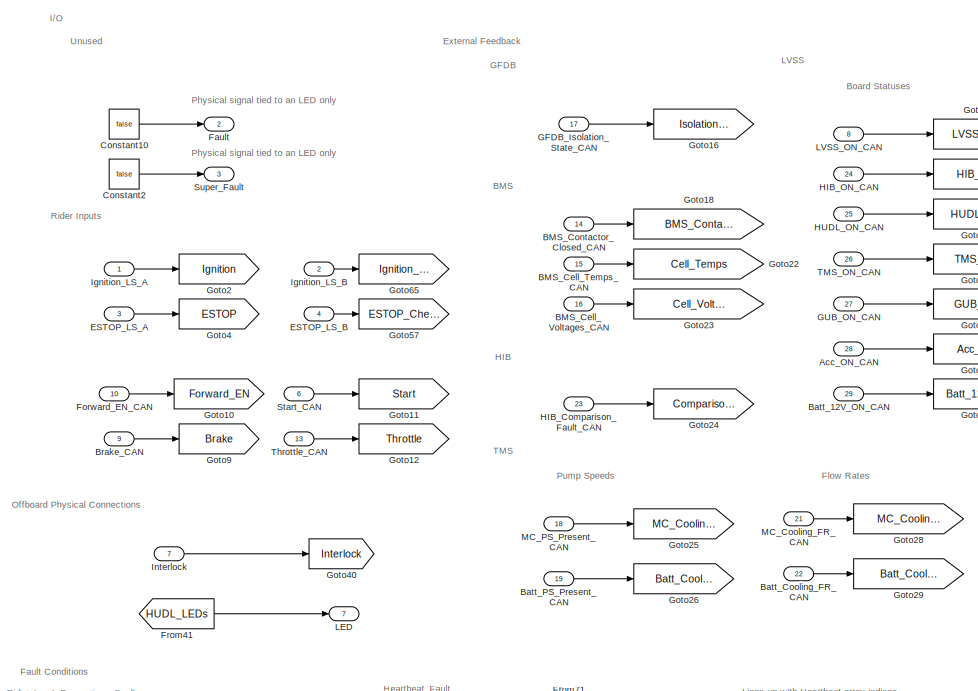
[diagram: root canvas - part 1/9, top left region]
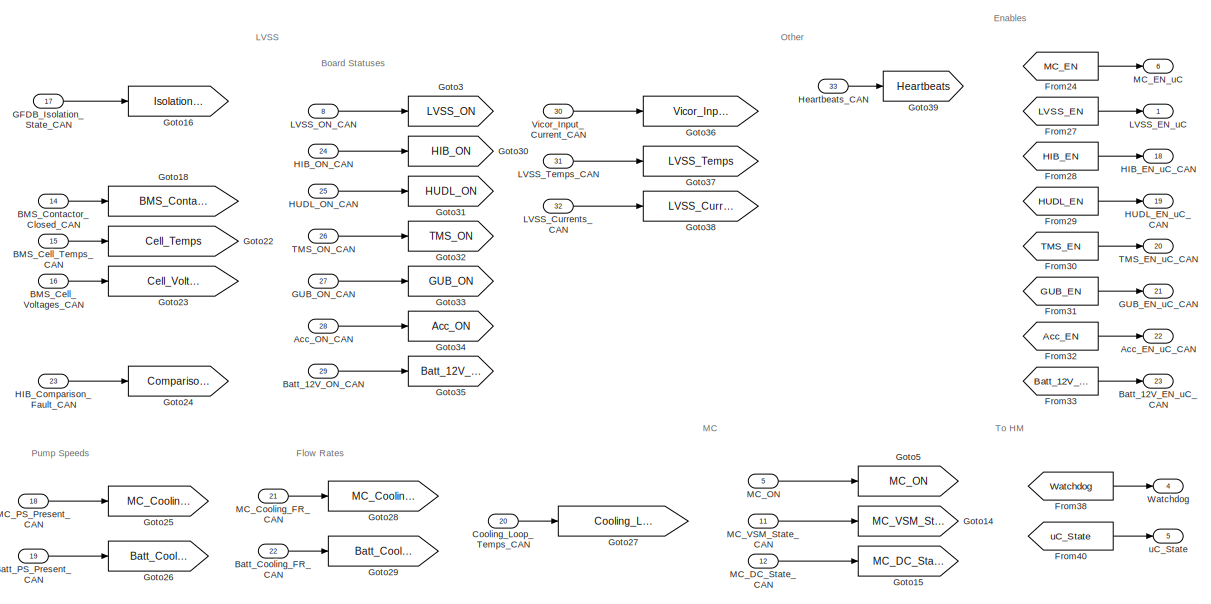
[diagram: root canvas - part 2/9, top left region]
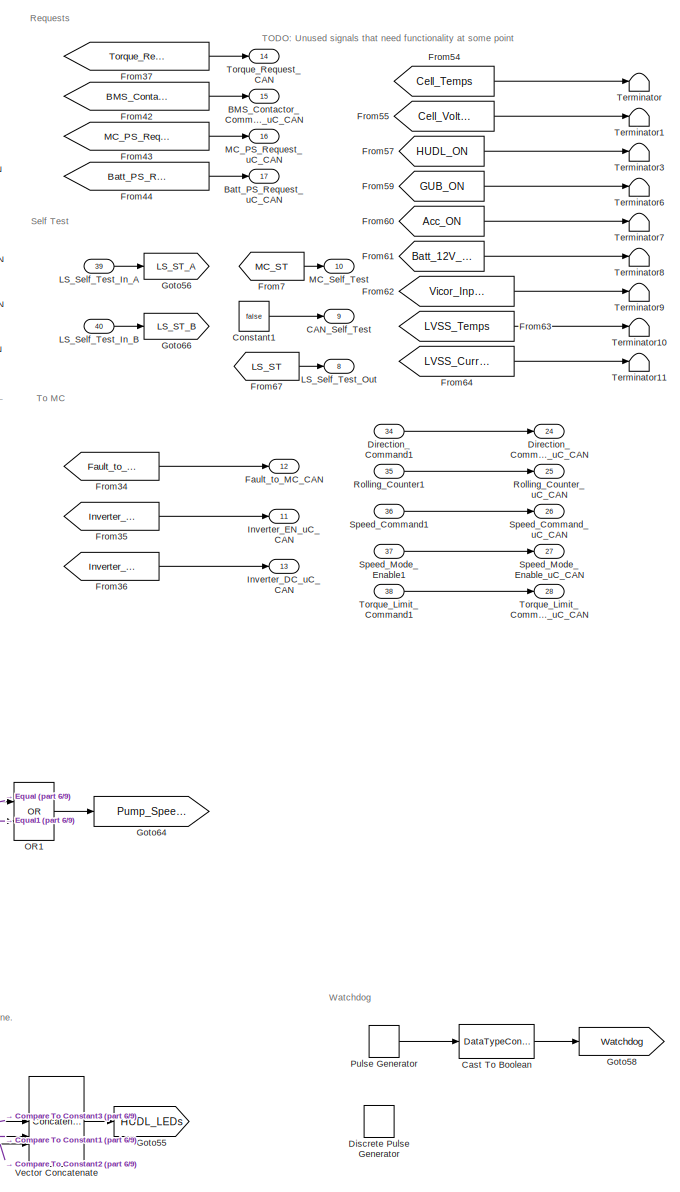
[diagram: root canvas - part 3/9, central region]
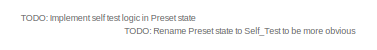
[diagram: root canvas - part 4/9, top right region]
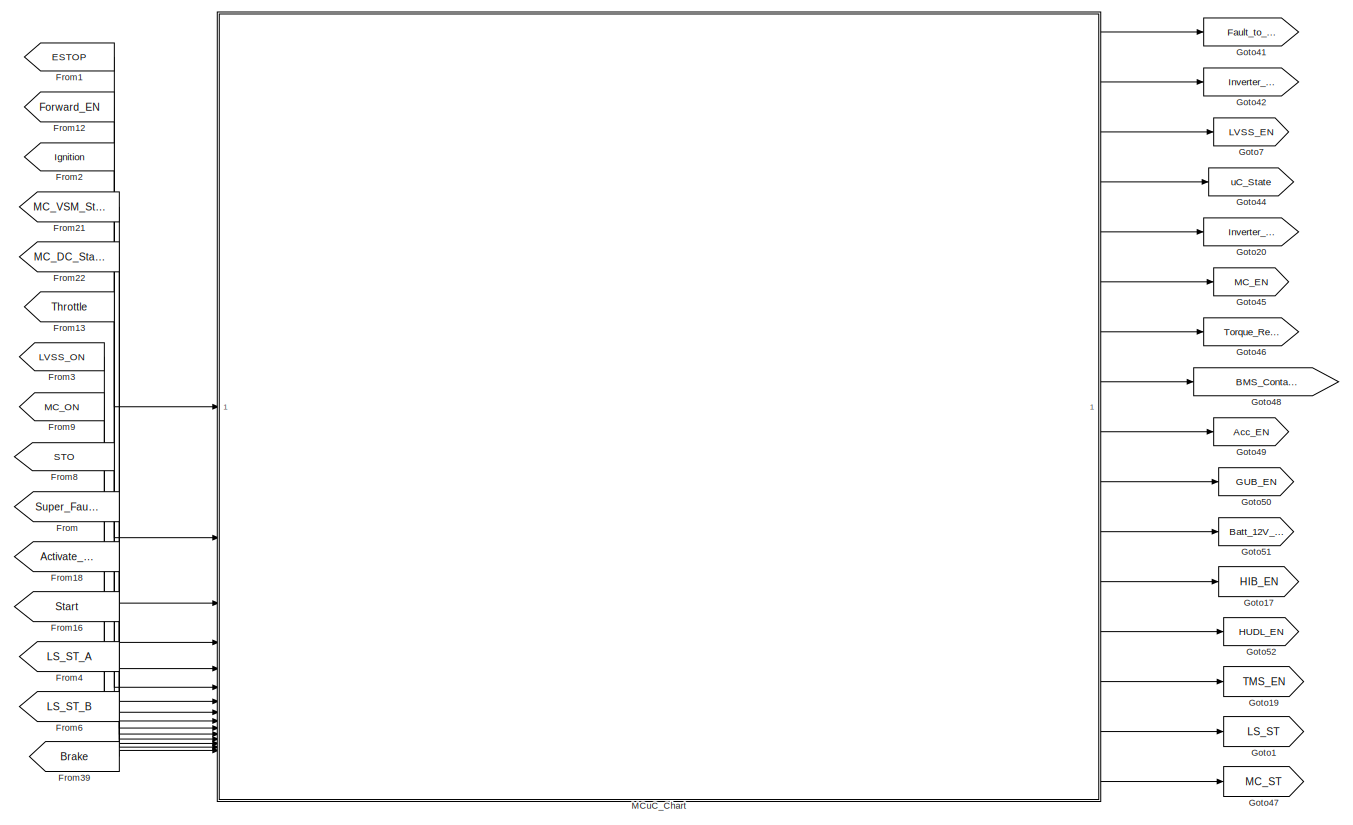
[diagram: root canvas - part 5/9, middle right region]
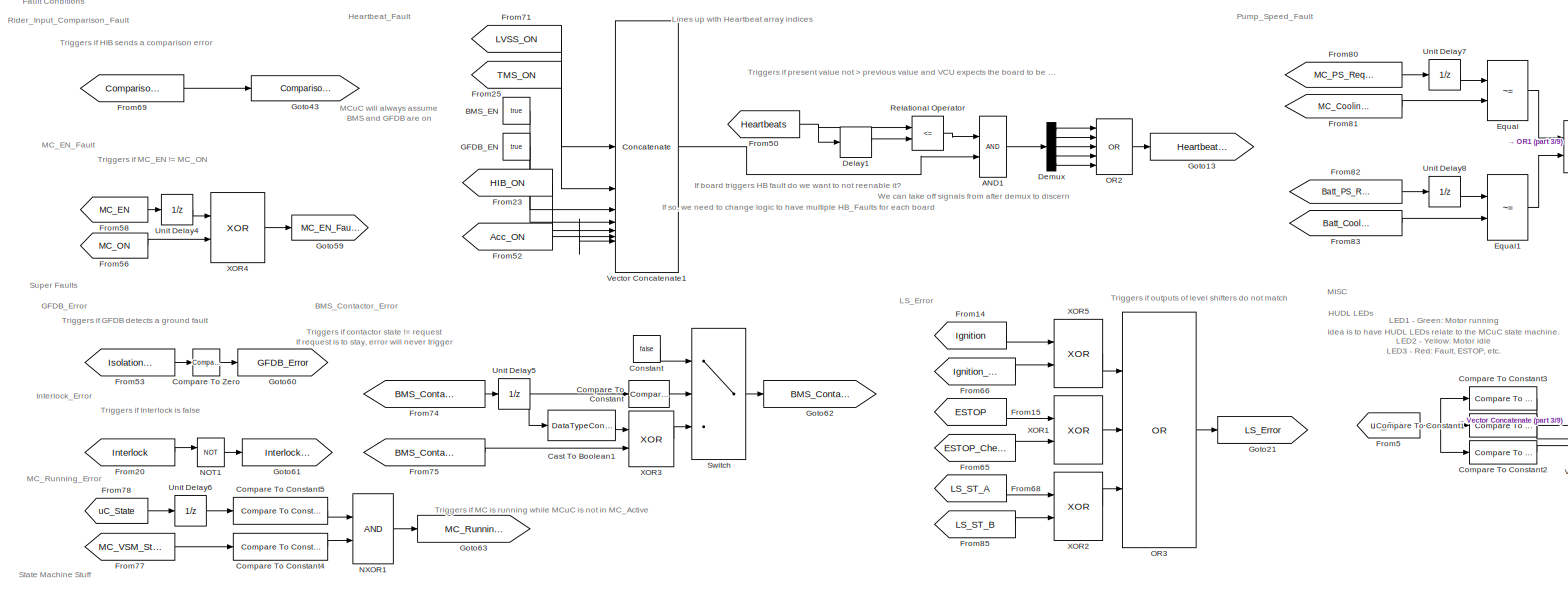
[diagram: root canvas - part 6/9, middle left region]
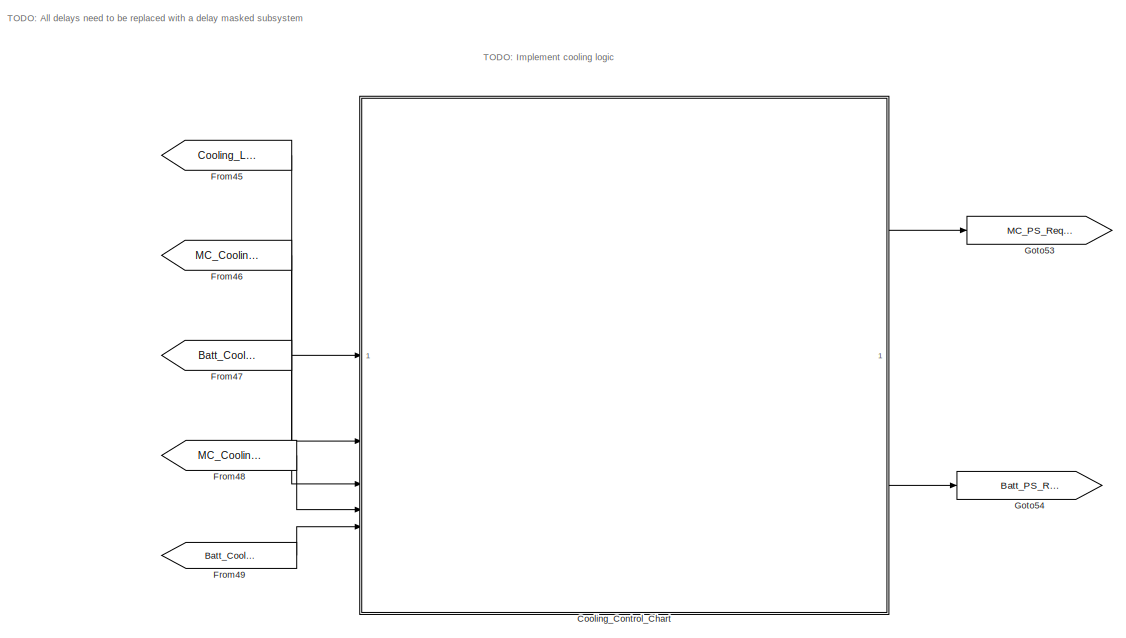
[diagram: root canvas - part 7/9, bottom right region]
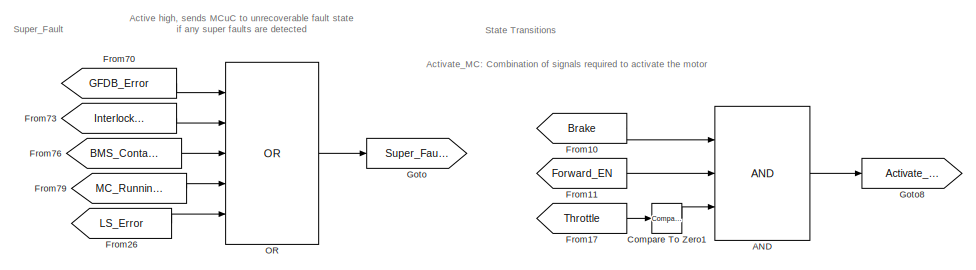
[diagram: root canvas - part 8/9, bottom left region]
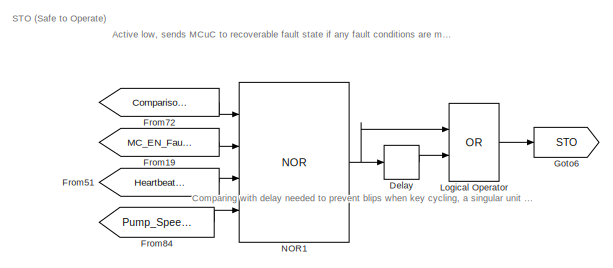
[diagram: root canvas - part 9/9, bottom left region]
MODEL slx_b971593e279c
KIND model
CONFIG AbsTol = auto
CONFIG EnableMultiTasking = off
CONFIG FixedStep = .0001
CONFIG MaxStep = auto
CONFIG MinStep = auto
CONFIG RelTol = 1e-3
CONFIG SampleTimeConstraint = Unconstrained
CONFIG SolverName = ode8
CONFIG StartTime = 0.0
CONFIG StopTime = 20.0
BLOCK [Logic] AND
  AllPortsSameDT = off
  IconShape = distinctive
  Inputs = 3
  OutDataTypeStr = boolean
BLOCK [Logic] AND1
  AllPortsSameDT = off
  IconShape = distinctive
  OutDataTypeStr = boolean
BLOCK [Outport] Acc_EN_uC_CAN
  OutDataTypeStr = boolean
  Port = 22
BLOCK [Inport] Acc_ON_CAN
  OutDataTypeStr = boolean
  Port = 28
BLOCK [Inport] BMS_Cell_Temps_CAN
  OutDataTypeStr = int32
  Port = 15
  PortDimensions = [1,45]
BLOCK [Inport] BMS_Cell_Voltages_CAN
  OutDataTypeStr = int16
  Port = 16
  PortDimensions = [1,100]
BLOCK [Inport] BMS_Contactor_Closed_CAN
  OutDataTypeStr = boolean
  Port = 14
BLOCK [Outport] BMS_Contactor_Command_uC_CAN
  OutDataTypeStr = Enum: BMS_Contactor_Command
  Port = 15
BLOCK [Constant] BMS_EN
  NameLocation = right
  Value = true
BLOCK [Outport] Batt_12V_EN_uC_CAN
  OutDataTypeStr = boolean
  Port = 23
BLOCK [Inport] Batt_12V_ON_CAN
  OutDataTypeStr = boolean
  Port = 29
BLOCK [Inport] Batt_Cooling_FR_CAN
  OutDataTypeStr = int16
  Port = 22
BLOCK [Inport] Batt_PS_Present_CAN
  OutDataTypeStr = uint8
  Port = 19
BLOCK [Outport] Batt_PS_Request_uC_CAN
  Port = 17
BLOCK [Inport] Brake_CAN
  OutDataTypeStr = boolean
  Port = 9
BLOCK [Outport] CAN_Self_Test
  OutDataTypeStr = boolean
  Port = 9
BLOCK [DataTypeConversion] Cast To Boolean
  OutDataTypeStr = boolean
  RndMeth = Floor
  SaturateOnIntegerOverflow = off
BLOCK [DataTypeConversion] Cast To Boolean1
  OutDataTypeStr = boolean
  RndMeth = Floor
  SaturateOnIntegerOverflow = off
BLOCK [Reference] Compare To Constant  REF=simulink/Logic and Bit
Operations/Compare
To Constant
  SourceBlock = simulink/Logic and Bit\nOperations/Compare\nTo Constant
  SourceType = Compare To Constant
BLOCK [Reference] Compare To Constant1  REF=simulink/Logic and Bit
Operations/Compare
To Constant
  SourceBlock = simulink/Logic and Bit\nOperations/Compare\nTo Constant
  SourceType = Compare To Constant
BLOCK [Reference] Compare To Constant2  REF=simulink/Logic and Bit
Operations/Compare
To Constant
  SourceBlock = simulink/Logic and Bit\nOperations/Compare\nTo Constant
  SourceType = Compare To Constant
BLOCK [Reference] Compare To Constant3  REF=simulink/Logic and Bit
Operations/Compare
To Constant
  SourceBlock = simulink/Logic and Bit\nOperations/Compare\nTo Constant
  SourceType = Compare To Constant
BLOCK [Reference] Compare To Constant4  REF=simulink/Logic and Bit
Operations/Compare
To Constant
  SourceBlock = simulink/Logic and Bit\nOperations/Compare\nTo Constant
  SourceType = Compare To Constant
BLOCK [Reference] Compare To Constant5  REF=simulink/Logic and Bit
Operations/Compare
To Constant
  SourceBlock = simulink/Logic and Bit\nOperations/Compare\nTo Constant
  SourceType = Compare To Constant
BLOCK [Reference] Compare To Zero  REF=simulink/Logic and Bit
Operations/Compare
To Zero
  SourceBlock = simulink/Logic and Bit\nOperations/Compare\nTo Zero
  SourceType = Compare To Zero
BLOCK [Reference] Compare To Zero1  REF=simulink/Logic and Bit
Operations/Compare
To Zero
  SourceBlock = simulink/Logic and Bit\nOperations/Compare\nTo Zero
  SourceType = Compare To Zero
BLOCK [Constant] Constant
  Value = false
BLOCK [Constant] Constant1
  Value = false
BLOCK [Constant] Constant10
  Value = false
BLOCK [Constant] Constant2
  Value = false
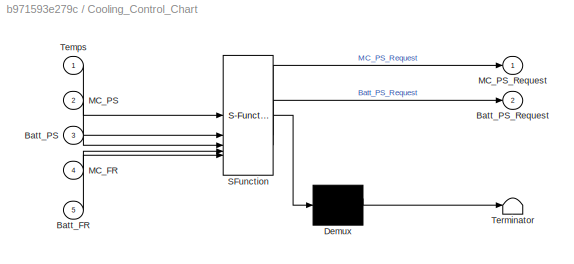
BLOCK [SubSystem] Cooling_Control_Chart
  ErrorFcn = Stateflow.Translate.translate
  PermitHierarchicalResolution = ExplicitOnly
  SFBlockType = Chart
  TreatAsAtomicUnit = on
BLOCK [Demux] Cooling_Control_Chart/ Demux 
  Outputs = 1
BLOCK [S-Function] Cooling_Control_Chart/ SFunction 
  EnableBusSupport = off
  FunctionName = sf_sfun
  PortCounts = [5 3]
  SFcnIsStateOwnerBlock = off
  SFunctionDeploymentMode = off
  Tag = Stateflow S-Function 3
BLOCK [Terminator] Cooling_Control_Chart/ Terminator 
BLOCK [Inport] Cooling_Control_Chart/Batt_FR
  Port = 5
BLOCK [Inport] Cooling_Control_Chart/Batt_PS
  Port = 3
BLOCK [Outport] Cooling_Control_Chart/Batt_PS_Request
  Port = 2
BLOCK [Inport] Cooling_Control_Chart/MC_FR
  Port = 4
BLOCK [Inport] Cooling_Control_Chart/MC_PS
  Port = 2
BLOCK [Outport] Cooling_Control_Chart/MC_PS_Request
BLOCK [Inport] Cooling_Control_Chart/Temps
BLOCK [Inport] Cooling_Loop_Temps_CAN
  OutDataTypeStr = int32
  Port = 20
  PortDimensions = [1,5]
BLOCK [Delay] Delay
  DelayLength = 20
  InitialCondition = 1
  InputPortMap = u0
BLOCK [Delay] Delay1
  DelayLength = 10
  InitialCondition = 1
  InputPortMap = u0
BLOCK [Demux] Demux
  Outputs = 5
BLOCK [Inport] Direction_Command1
  OutDataTypeStr = int16
  Port = 34
BLOCK [Outport] Direction_Command_uC_CAN
  OutDataTypeStr = int16
  Port = 24
BLOCK [DiscretePulseGenerator] Discrete Pulse Generator
  Amplitude = true
  Period = 10
  PulseWidth = 5
BLOCK [Inport] ESTOP_LS_A
  OutDataTypeStr = boolean
  Port = 3
BLOCK [Inport] ESTOP_LS_B
  OutDataTypeStr = boolean
  Port = 4
BLOCK [RelationalOperator] Equal
  InputSameDT = off
  Operator = ~=
  OutDataTypeStr = boolean
  RndMeth = Simplest
BLOCK [RelationalOperator] Equal1
  InputSameDT = off
  Operator = ~=
  OutDataTypeStr = boolean
  RndMeth = Simplest
BLOCK [Outport] Fault
  OutDataTypeStr = boolean
  Port = 2
BLOCK [Outport] Fault_to_MC_CAN
  OutDataTypeStr = boolean
  Port = 12
BLOCK [Inport] Forward_EN_CAN
  OutDataTypeStr = boolean
  Port = 10
BLOCK [From] From
  GotoTag = Super_Fault
BLOCK [From] From1
  GotoTag = ESTOP
BLOCK [From] From10
  GotoTag = Brake
BLOCK [From] From11
  GotoTag = Forward_EN
BLOCK [From] From12
  GotoTag = Forward_EN
BLOCK [From] From13
  GotoTag = Throttle
BLOCK [From] From14
  GotoTag = Ignition
BLOCK [From] From15
  GotoTag = ESTOP
BLOCK [From] From16
  GotoTag = Start
BLOCK [From] From17
  GotoTag = Throttle
BLOCK [From] From18
  GotoTag = Activate_MC
BLOCK [From] From19
  GotoTag = MC_EN_Fault
BLOCK [From] From2
  GotoTag = Ignition
BLOCK [From] From20
  GotoTag = Interlock
BLOCK [From] From21
  GotoTag = MC_VSM_State
BLOCK [From] From22
  GotoTag = MC_DC_State
BLOCK [From] From23
  GotoTag = HIB_ON
BLOCK [From] From24
  GotoTag = MC_EN
BLOCK [From] From25
  GotoTag = TMS_ON
BLOCK [From] From26
  GotoTag = LS_Error
BLOCK [From] From27
  GotoTag = LVSS_EN
BLOCK [From] From28
  GotoTag = HIB_EN
BLOCK [From] From29
  GotoTag = HUDL_EN
BLOCK [From] From3
  GotoTag = LVSS_ON
BLOCK [From] From30
  GotoTag = TMS_EN
BLOCK [From] From31
  GotoTag = GUB_EN
BLOCK [From] From32
  GotoTag = Acc_EN
BLOCK [From] From33
  GotoTag = Batt_12V_EN
BLOCK [From] From34
  GotoTag = Fault_to_MC
BLOCK [From] From35
  GotoTag = Inverter_EN
BLOCK [From] From36
  GotoTag = Inverter_DC
BLOCK [From] From37
  GotoTag = Torque_Request
BLOCK [From] From38
  GotoTag = Watchdog
BLOCK [From] From39
  GotoTag = Brake
BLOCK [From] From4
  GotoTag = LS_ST_A
BLOCK [From] From40
  GotoTag = uC_State
BLOCK [From] From41
  GotoTag = HUDL_LEDs
BLOCK [From] From42
  GotoTag = BMS_Contactor_Request
BLOCK [From] From43
  GotoTag = MC_PS_Request
BLOCK [From] From44
  GotoTag = Batt_PS_Request
BLOCK [From] From45
  GotoTag = Cooling_Loop_Temps
BLOCK [From] From46
  GotoTag = MC_Cooling_PS
BLOCK [From] From47
  GotoTag = Batt_Cooling_PS
BLOCK [From] From48
  GotoTag = MC_Cooling_FR
BLOCK [From] From49
  GotoTag = Batt_Cooling_FR
BLOCK [From] From5
  GotoTag = uC_State
BLOCK [From] From50
  GotoTag = Heartbeats
BLOCK [From] From51
  GotoTag = Heartbeat_Fault
BLOCK [From] From52
  GotoTag = Acc_ON
BLOCK [From] From53
  GotoTag = Isolation_State
BLOCK [From] From54
  GotoTag = Cell_Temps
BLOCK [From] From55
  GotoTag = Cell_Voltages
BLOCK [From] From56
  GotoTag = MC_ON
BLOCK [From] From57
  GotoTag = HUDL_ON
BLOCK [From] From58
  GotoTag = MC_EN
BLOCK [From] From59
  GotoTag = GUB_ON
BLOCK [From] From6
  GotoTag = LS_ST_B
BLOCK [From] From60
  GotoTag = Acc_ON
BLOCK [From] From61
  GotoTag = Batt_12V_ON
BLOCK [From] From62
  GotoTag = Vicor_Input_Current
BLOCK [From] From63
  GotoTag = LVSS_Temps
BLOCK [From] From64
  GotoTag = LVSS_Currents
BLOCK [From] From65
  GotoTag = ESTOP_Check
BLOCK [From] From66
  GotoTag = Ignition_Check
BLOCK [From] From67
  GotoTag = LS_ST
BLOCK [From] From68
  GotoTag = LS_ST_A
BLOCK [From] From69
  GotoTag = Comparison_Error
BLOCK [From] From7
  GotoTag = MC_ST
BLOCK [From] From70
  GotoTag = GFDB_Error
BLOCK [From] From71
  GotoTag = LVSS_ON
BLOCK [From] From72
  GotoTag = Comparison_Fault
BLOCK [From] From73
  GotoTag = Interlock_Error
BLOCK [From] From74
  GotoTag = BMS_Contactor_Request
BLOCK [From] From75
  GotoTag = BMS_Contactor_Closed
BLOCK [From] From76
  GotoTag = BMS_Contactor_Error
BLOCK [From] From77
  GotoTag = MC_VSM_State
BLOCK [From] From78
  GotoTag = uC_State
BLOCK [From] From79
  GotoTag = MC_Running_Error
BLOCK [From] From8
  GotoTag = STO
BLOCK [From] From80
  GotoTag = MC_PS_Request
BLOCK [From] From81
  GotoTag = MC_Cooling_PS
BLOCK [From] From82
  GotoTag = Batt_PS_Request
BLOCK [From] From83
  GotoTag = Batt_Cooling_PS
BLOCK [From] From84
  GotoTag = Pump_Speed_Fault
BLOCK [From] From85
  GotoTag = LS_ST_B
BLOCK [From] From9
  GotoTag = MC_ON
BLOCK [Constant] GFDB_EN
  NameLocation = right
  Value = true
BLOCK [Inport] GFDB_Isolation_State_CAN
  OutDataTypeStr = uint8
  Port = 17
BLOCK [Outport] GUB_EN_uC_CAN
  OutDataTypeStr = boolean
  Port = 21
BLOCK [Inport] GUB_ON_CAN
  OutDataTypeStr = boolean
  Port = 27
BLOCK [Goto] Goto
  GotoTag = Super_Fault
BLOCK [Goto] Goto1
  GotoTag = LS_ST
BLOCK [Goto] Goto10
  GotoTag = Forward_EN
BLOCK [Goto] Goto11
  GotoTag = Start
BLOCK [Goto] Goto12
  GotoTag = Throttle
BLOCK [Goto] Goto13
  GotoTag = Heartbeat_Fault
BLOCK [Goto] Goto14
  GotoTag = MC_VSM_State
BLOCK [Goto] Goto15
  GotoTag = MC_DC_State
BLOCK [Goto] Goto16
  GotoTag = Isolation_State
BLOCK [Goto] Goto17
  GotoTag = HIB_EN
BLOCK [Goto] Goto18
  GotoTag = BMS_Contactor_Closed
BLOCK [Goto] Goto19
  GotoTag = TMS_EN
BLOCK [Goto] Goto2
  GotoTag = Ignition
BLOCK [Goto] Goto20
  GotoTag = Inverter_DC
BLOCK [Goto] Goto21
  GotoTag = LS_Error
BLOCK [Goto] Goto22
  GotoTag = Cell_Temps
BLOCK [Goto] Goto23
  GotoTag = Cell_Voltages
BLOCK [Goto] Goto24
  GotoTag = Comparison_Error
BLOCK [Goto] Goto25
  GotoTag = MC_Cooling_PS
BLOCK [Goto] Goto26
  GotoTag = Batt_Cooling_PS
BLOCK [Goto] Goto27
  GotoTag = Cooling_Loop_Temps
BLOCK [Goto] Goto28
  GotoTag = MC_Cooling_FR
BLOCK [Goto] Goto29
  GotoTag = Batt_Cooling_FR
BLOCK [Goto] Goto3
  GotoTag = LVSS_ON
BLOCK [Goto] Goto30
  GotoTag = HIB_ON
BLOCK [Goto] Goto31
  GotoTag = HUDL_ON
BLOCK [Goto] Goto32
  GotoTag = TMS_ON
BLOCK [Goto] Goto33
  GotoTag = GUB_ON
BLOCK [Goto] Goto34
  GotoTag = Acc_ON
BLOCK [Goto] Goto35
  GotoTag = Batt_12V_ON
BLOCK [Goto] Goto36
  GotoTag = Vicor_Input_Current
BLOCK [Goto] Goto37
  GotoTag = LVSS_Temps
BLOCK [Goto] Goto38
  GotoTag = LVSS_Currents
BLOCK [Goto] Goto39
  GotoTag = Heartbeats
BLOCK [Goto] Goto4
  GotoTag = ESTOP
BLOCK [Goto] Goto40
  GotoTag = Interlock
BLOCK [Goto] Goto41
  GotoTag = Fault_to_MC
BLOCK [Goto] Goto42
  GotoTag = Inverter_EN
BLOCK [Goto] Goto43
  GotoTag = Comparison_Fault
BLOCK [Goto] Goto44
  GotoTag = uC_State
BLOCK [Goto] Goto45
  GotoTag = MC_EN
BLOCK [Goto] Goto46
  GotoTag = Torque_Request
BLOCK [Goto] Goto47
  GotoTag = MC_ST
BLOCK [Goto] Goto48
  GotoTag = BMS_Contactor_Request
BLOCK [Goto] Goto49
  GotoTag = Acc_EN
BLOCK [Goto] Goto5
  GotoTag = MC_ON
BLOCK [Goto] Goto50
  GotoTag = GUB_EN
BLOCK [Goto] Goto51
  GotoTag = Batt_12V_EN
BLOCK [Goto] Goto52
  GotoTag = HUDL_EN
BLOCK [Goto] Goto53
  GotoTag = MC_PS_Request
BLOCK [Goto] Goto54
  GotoTag = Batt_PS_Request
BLOCK [Goto] Goto55
  GotoTag = HUDL_LEDs
BLOCK [Goto] Goto56
  GotoTag = LS_ST_A
BLOCK [Goto] Goto57
  GotoTag = ESTOP_Check
BLOCK [Goto] Goto58
  GotoTag = Watchdog
BLOCK [Goto] Goto59
  GotoTag = MC_EN_Fault
BLOCK [Goto] Goto6
  GotoTag = STO
BLOCK [Goto] Goto60
  GotoTag = GFDB_Error
BLOCK [Goto] Goto61
  GotoTag = Interlock_Error
BLOCK [Goto] Goto62
  GotoTag = BMS_Contactor_Error
BLOCK [Goto] Goto63
  GotoTag = MC_Running_Error
BLOCK [Goto] Goto64
  GotoTag = Pump_Speed_Fault
BLOCK [Goto] Goto65
  GotoTag = Ignition_Check
BLOCK [Goto] Goto66
  GotoTag = LS_ST_B
BLOCK [Goto] Goto7
  GotoTag = LVSS_EN
BLOCK [Goto] Goto8
  GotoTag = Activate_MC
BLOCK [Goto] Goto9
  GotoTag = Brake
BLOCK [Inport] HIB_Comparison_Fault_CAN
  OutDataTypeStr = boolean
  Port = 23
BLOCK [Outport] HIB_EN_uC_CAN
  OutDataTypeStr = boolean
  Port = 18
BLOCK [Inport] HIB_ON_CAN
  OutDataTypeStr = boolean
  Port = 24
BLOCK [Outport] HUDL_EN_uC_CAN
  OutDataTypeStr = boolean
  Port = 19
BLOCK [Inport] HUDL_ON_CAN
  OutDataTypeStr = boolean
  Port = 25
BLOCK [Inport] Heartbeats_CAN
  OutDataTypeStr = uint32
  Port = 33
  PortDimensions = [1,5]
BLOCK [Inport] Ignition_LS_A
  OutDataTypeStr = boolean
BLOCK [Inport] Ignition_LS_B
  OutDataTypeStr = boolean
  Port = 2
BLOCK [Inport] Interlock
  OutDataTypeStr = boolean
  Port = 7
BLOCK [Outport] Inverter_DC_uC_CAN
  OutDataTypeStr = boolean
  Port = 13
BLOCK [Outport] Inverter_EN_uC_CAN
  OutDataTypeStr = boolean
  Port = 11
BLOCK [Outport] LED
  OutDataTypeStr = boolean
  Port = 7
  PortDimensions = [1,3]
BLOCK [Inport] LS_Self_Test_In_A
  OutDataTypeStr = boolean
  Port = 39
BLOCK [Inport] LS_Self_Test_In_B
  OutDataTypeStr = boolean
  Port = 40
BLOCK [Outport] LS_Self_Test_Out
  OutDataTypeStr = boolean
  Port = 8
BLOCK [Inport] LVSS_Currents_CAN
  OutDataTypeStr = int16
  Port = 32
  PortDimensions = [1,6]
BLOCK [Outport] LVSS_EN_uC
  OutDataTypeStr = boolean
BLOCK [Inport] LVSS_ON_CAN
  OutDataTypeStr = boolean
  Port = 8
BLOCK [Inport] LVSS_Temps_CAN
  OutDataTypeStr = int32
  Port = 31
  PortDimensions = [1,6]
BLOCK [Logic] Logical Operator
  AllPortsSameDT = off
  IconShape = distinctive
  Operator = OR
  OutDataTypeStr = boolean
BLOCK [Inport] MC_Cooling_FR_CAN
  OutDataTypeStr = int16
  Port = 21
BLOCK [Inport] MC_DC_State_CAN
  OutDataTypeStr = Enum: MC_DC_State
  Port = 12
BLOCK [Outport] MC_EN_uC
  OutDataTypeStr = boolean
  Port = 6
BLOCK [Inport] MC_ON
  OutDataTypeStr = boolean
  Port = 5
BLOCK [Inport] MC_PS_Present_CAN
  OutDataTypeStr = uint8
  Port = 18
BLOCK [Outport] MC_PS_Request_uC_CAN
  Port = 16
BLOCK [Outport] MC_Self_Test
  OutDataTypeStr = boolean
  Port = 10
BLOCK [Inport] MC_VSM_State_CAN
  OutDataTypeStr = Enum: MC_VSM_State
  Port = 11
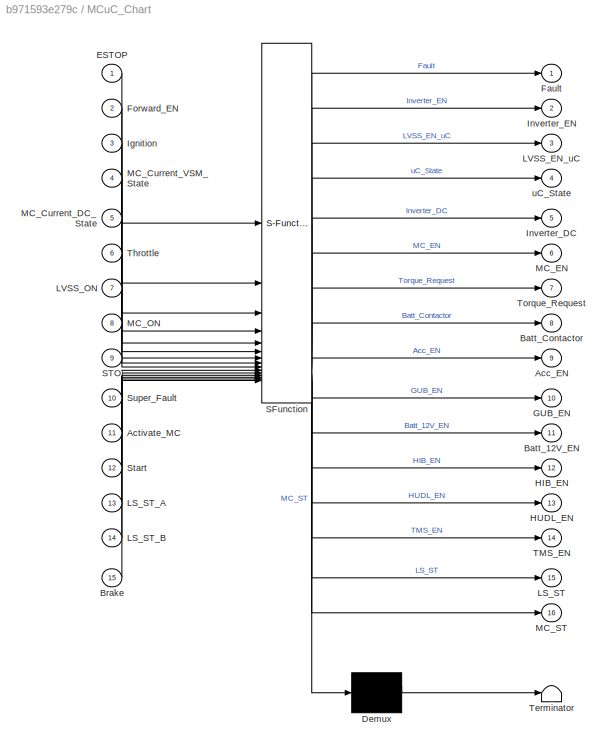
BLOCK [SubSystem] MCuC_Chart
  ErrorFcn = Stateflow.Translate.translate
  PermitHierarchicalResolution = ExplicitOnly
  SFBlockType = Chart
  TreatAsAtomicUnit = on
BLOCK [Demux] MCuC_Chart/ Demux 
  Outputs = 1
BLOCK [S-Function] MCuC_Chart/ SFunction 
  EnableBusSupport = off
  FunctionName = sf_sfun
  PortCounts = [15 17]
  SFcnIsStateOwnerBlock = off
  SFunctionDeploymentMode = off
  Tag = Stateflow S-Function 2
BLOCK [Terminator] MCuC_Chart/ Terminator 
BLOCK [Outport] MCuC_Chart/Acc_EN
  Port = 9
BLOCK [Inport] MCuC_Chart/Activate_MC
  Port = 11
BLOCK [Outport] MCuC_Chart/Batt_12V_EN
  Port = 11
BLOCK [Outport] MCuC_Chart/Batt_Contactor
  Port = 8
BLOCK [Inport] MCuC_Chart/Brake
  Port = 15
BLOCK [Inport] MCuC_Chart/ESTOP
BLOCK [Outport] MCuC_Chart/Fault
BLOCK [Inport] MCuC_Chart/Forward_EN
  Port = 2
BLOCK [Outport] MCuC_Chart/GUB_EN
  Port = 10
BLOCK [Outport] MCuC_Chart/HIB_EN
  Port = 12
BLOCK [Outport] MCuC_Chart/HUDL_EN
  Port = 13
BLOCK [Inport] MCuC_Chart/Ignition
  Port = 3
BLOCK [Outport] MCuC_Chart/Inverter_DC
  Port = 5
BLOCK [Outport] MCuC_Chart/Inverter_EN
  Port = 2
BLOCK [Outport] MCuC_Chart/LS_ST
  Port = 15
BLOCK [Inport] MCuC_Chart/LS_ST_A
  Port = 13
BLOCK [Inport] MCuC_Chart/LS_ST_B
  Port = 14
BLOCK [Outport] MCuC_Chart/LVSS_EN_uC
  Port = 3
BLOCK [Inport] MCuC_Chart/LVSS_ON
  Port = 7
BLOCK [Inport] MCuC_Chart/MC_Current_DC_State
  Port = 5
BLOCK [Inport] MCuC_Chart/MC_Current_VSM_State
  Port = 4
BLOCK [Outport] MCuC_Chart/MC_EN
  Port = 6
BLOCK [Inport] MCuC_Chart/MC_ON
  Port = 8
BLOCK [Outport] MCuC_Chart/MC_ST
  Port = 16
BLOCK [Inport] MCuC_Chart/STO
  Port = 9
BLOCK [Inport] MCuC_Chart/Start
  Port = 12
BLOCK [Inport] MCuC_Chart/Super_Fault
  Port = 10
BLOCK [Outport] MCuC_Chart/TMS_EN
  Port = 14
BLOCK [Inport] MCuC_Chart/Throttle
  Port = 6
BLOCK [Outport] MCuC_Chart/Torque_Request
  Port = 7
BLOCK [Outport] MCuC_Chart/uC_State
  Port = 4
BLOCK [Logic] NOR1
  AllPortsSameDT = off
  IconShape = distinctive
  Inputs = 4
  Operator = NOR
  OutDataTypeStr = boolean
BLOCK [Logic] NOT1
  AllPortsSameDT = off
  IconShape = distinctive
  Operator = NOT
  OutDataTypeStr = boolean
BLOCK [Logic] NXOR1
  AllPortsSameDT = off
  IconShape = distinctive
  OutDataTypeStr = boolean
BLOCK [Logic] OR
  AllPortsSameDT = off
  IconShape = distinctive
  Inputs = 5
  Operator = OR
  OutDataTypeStr = boolean
BLOCK [Logic] OR1
  AllPortsSameDT = off
  IconShape = distinctive
  Operator = OR
  OutDataTypeStr = boolean
BLOCK [Logic] OR2
  AllPortsSameDT = off
  IconShape = distinctive
  Inputs = 5
  Operator = OR
  OutDataTypeStr = boolean
BLOCK [Logic] OR3
  AllPortsSameDT = off
  IconShape = distinctive
  Inputs = 3
  Operator = OR
  OutDataTypeStr = boolean
BLOCK [DiscretePulseGenerator] Pulse Generator
  Period = .0002
  PulseType = Time based
  PulseWidth = 50
BLOCK [RelationalOperator] Relational Operator
  InputSameDT = off
  Operator = <=
  OutDataTypeStr = boolean
  RndMeth = Simplest
BLOCK [Inport] Rolling_Counter1
  OutDataTypeStr = int16
  Port = 35
BLOCK [Outport] Rolling_Counter_uC_CAN
  OutDataTypeStr = int16
  Port = 25
BLOCK [Inport] Speed_Command1
  OutDataTypeStr = int16
  Port = 36
BLOCK [Outport] Speed_Command_uC_CAN
  OutDataTypeStr = int16
  Port = 26
BLOCK [Inport] Speed_Mode_Enable1
  OutDataTypeStr = int16
  Port = 37
BLOCK [Outport] Speed_Mode_Enable_uC_CAN
  OutDataTypeStr = int16
  Port = 27
BLOCK [Inport] Start_CAN
  OutDataTypeStr = boolean
  Port = 6
BLOCK [Outport] Super_Fault
  OutDataTypeStr = boolean
  Port = 3
BLOCK [Switch] Switch
  Criteria = u2 ~= 0
  InputSameDT = off
  SaturateOnIntegerOverflow = off
BLOCK [Outport] TMS_EN_uC_CAN
  OutDataTypeStr = boolean
  Port = 20
BLOCK [Inport] TMS_ON_CAN
  OutDataTypeStr = boolean
  Port = 26
BLOCK [Terminator] Terminator
BLOCK [Terminator] Terminator1
BLOCK [Terminator] Terminator10
BLOCK [Terminator] Terminator11
BLOCK [Terminator] Terminator3
BLOCK [Terminator] Terminator6
BLOCK [Terminator] Terminator7
BLOCK [Terminator] Terminator8
BLOCK [Terminator] Terminator9
BLOCK [Inport] Throttle_CAN
  OutDataTypeStr = int16
  Port = 13
BLOCK [Inport] Torque_Limit_Command1
  OutDataTypeStr = int16
  Port = 38
BLOCK [Outport] Torque_Limit_Command_uC_CAN
  OutDataTypeStr = int16
  Port = 28
BLOCK [Outport] Torque_Request_CAN
  OutDataTypeStr = int16
  Port = 14
BLOCK [UnitDelay] Unit Delay4
  HasFrameUpgradeWarning = on
  SampleTime = -1
BLOCK [UnitDelay] Unit Delay5
  HasFrameUpgradeWarning = on
  InitialCondition = BMS_Contactor_Command.Open_Contactor
  SampleTime = -1
BLOCK [UnitDelay] Unit Delay6
  HasFrameUpgradeWarning = on
  InitialCondition = UC_State.Preset
  SampleTime = -1
BLOCK [UnitDelay] Unit Delay7
  HasFrameUpgradeWarning = on
  SampleTime = -1
BLOCK [UnitDelay] Unit Delay8
  HasFrameUpgradeWarning = on
  SampleTime = -1
BLOCK [Concatenate] Vector Concatenate
  NumInputs = 3
BLOCK [Concatenate] Vector Concatenate1
  NumInputs = 7
BLOCK [Inport] Vicor_Input_Current_CAN
  OutDataTypeStr = int16
  Port = 30
BLOCK [Outport] Watchdog
  OutDataTypeStr = boolean
  Port = 4
BLOCK [Logic] XOR1
  AllPortsSameDT = off
  IconShape = distinctive
  Operator = XOR
  OutDataTypeStr = boolean
BLOCK [Logic] XOR2
  AllPortsSameDT = off
  IconShape = distinctive
  Operator = XOR
  OutDataTypeStr = boolean
BLOCK [Logic] XOR3
  AllPortsSameDT = off
  IconShape = distinctive
  Operator = XOR
  OutDataTypeStr = boolean
BLOCK [Logic] XOR4
  AllPortsSameDT = off
  IconShape = distinctive
  Operator = XOR
  OutDataTypeStr = boolean
BLOCK [Logic] XOR5
  AllPortsSameDT = off
  IconShape = distinctive
  Operator = XOR
  OutDataTypeStr = boolean
BLOCK [Outport] uC_State
  OutDataTypeStr = Enum: UC_State
  Port = 5
ANNOTATION (root): TODO: All delays need to be replaced with a delay masked subsystem
ANNOTATION (root): Activate_MC: Combination of signals required to activate the motor
ANNOTATION (root): Active high, sends MCuC to unrecoverable fault state if any super faults are detected
ANNOTATION (root): Active low, sends MCuC to recoverable fault state if any fault conditions are met
ANNOTATION (root): BMS
ANNOTATION (root): BMS_Contactor_Error
ANNOTATION (root): Board Statuses
ANNOTATION (root): Comparing with delay needed to prevent blips when key cycling, a singular unit delay was not enough
ANNOTATION (root): Enables
ANNOTATION (root): External Feedback
ANNOTATION (root): Fault Conditions
ANNOTATION (root): Flow Rates
ANNOTATION (root): GFDB
ANNOTATION (root): GFDB_Error
ANNOTATION (root): HIB
ANNOTATION (root): HUDL LEDs
ANNOTATION (root): Heartbeat_Fault
ANNOTATION (root): I/O
ANNOTATION (root): Idea is to have HUDL LEDs relate to the MCuC state machine. LED1 - Green: Motor running LED2 - Yellow: Motor idle LED3 - Red: Fault, ESTOP, etc.
ANNOTATION (root): If board triggers HB fault do we want to not reenable it?
ANNOTATION (root): If so, we need to change logic to have multiple HB_Faults for each board
ANNOTATION (root): Interlock_Error
ANNOTATION (root): LS_Error
ANNOTATION (root): LVSS
ANNOTATION (root): Lines up with Heartbeat array indices
ANNOTATION (root): MC
ANNOTATION (root): MC_EN_Fault
ANNOTATION (root): MC_Running_Error
ANNOTATION (root): MCuC will always assume BMS and GFDB are on
ANNOTATION (root): MISC
ANNOTATION (root): Offboard Physical Connections
ANNOTATION (root): Other
ANNOTATION (root): Physical signal tied to an LED only
ANNOTATION (root): Pump Speeds
ANNOTATION (root): Pump_Speed_Fault
ANNOTATION (root): Requests
ANNOTATION (root): Rider Inputs
ANNOTATION (root): Rider_Input_Comparison_Fault
ANNOTATION (root): STO (Safe to Operate)
ANNOTATION (root): Self Test
ANNOTATION (root): State Machine Stuff
ANNOTATION (root): State Transitions
ANNOTATION (root): Super Faults
ANNOTATION (root): Super_Fault
ANNOTATION (root): TMS
ANNOTATION (root): TODO: Implement cooling logic
ANNOTATION (root): TODO: Implement self test logic in Preset state
ANNOTATION (root): TODO: Rename Preset state to Self_Test to be more obvious
ANNOTATION (root): TODO: Unused signals that need functionality at some point
ANNOTATION (root): To HM
ANNOTATION (root): To MC
ANNOTATION (root): Triggers if GFDB detects a ground fault
ANNOTATION (root): Triggers if HIB sends a comparison error
ANNOTATION (root): Triggers if Interlock is false
ANNOTATION (root): Triggers if MC is running while MCuC is not in MC_Active
ANNOTATION (root): Triggers if MC_EN != MC_ON
ANNOTATION (root): Triggers if contactor state != request If request is to stay, error will never trigger
ANNOTATION (root): Triggers if outputs of level shifters do not match
ANNOTATION (root): Triggers if present value not > previous value and VCU expects the board to be on.
ANNOTATION (root): Unused
ANNOTATION (root): Watchdog
ANNOTATION (root): We can take off signals from after demux to discern
LINE AND1:1 -> Demux:1
LINE AND:1 -> Goto8:1
LINE Acc_ON_CAN:1 -> Goto34:1
LINE BMS_Cell_Temps_CAN:1 -> Goto22:1
LINE BMS_Cell_Voltages_CAN:1 -> Goto23:1
LINE BMS_Contactor_Closed_CAN:1 -> Goto18:1
LINE BMS_EN:1 -> Vector Concatenate1:3
LINE Batt_12V_ON_CAN:1 -> Goto35:1
LINE Batt_Cooling_FR_CAN:1 -> Goto29:1
LINE Batt_PS_Present_CAN:1 -> Goto26:1
LINE Brake_CAN:1 -> Goto9:1
LINE Cast To Boolean1:1 -> XOR3:1
LINE Cast To Boolean:1 -> Goto58:1
LINE Compare To Constant1:1 -> Vector Concatenate:2
LINE Compare To Constant2:1 -> Vector Concatenate:3
LINE Compare To Constant3:1 -> Vector Concatenate:1
LINE Compare To Constant4:1 -> NXOR1:2
LINE Compare To Constant5:1 -> NXOR1:1
LINE Compare To Constant:1 -> Switch:2
LINE Compare To Zero1:1 -> AND:3
LINE Compare To Zero:1 -> Goto60:1
LINE Constant10:1 -> Fault:1
LINE Constant1:1 -> CAN_Self_Test:1
LINE Constant2:1 -> Super_Fault:1
LINE Constant:1 -> Switch:1
LINE Cooling_Control_Chart:1 -> Goto53:1
LINE Cooling_Control_Chart:2 -> Goto54:1
LINE Cooling_Loop_Temps_CAN:1 -> Goto27:1
LINE Delay1:1 -> Relational Operator:2
LINE Delay:1 -> Logical Operator:2
LINE Demux:1 -> OR2:1
LINE Demux:2 -> OR2:2
LINE Demux:3 -> OR2:3
LINE Demux:4 -> OR2:4
LINE Demux:5 -> OR2:5
LINE Direction_Command1:1 -> Direction_Command_uC_CAN:1
LINE ESTOP_LS_A:1 -> Goto4:1
LINE ESTOP_LS_B:1 -> Goto57:1
LINE Equal1:1 -> OR1:2
LINE Equal:1 -> OR1:1
LINE Forward_EN_CAN:1 -> Goto10:1
LINE From10:1 -> AND:1
LINE From11:1 -> AND:2
LINE From12:1 -> MCuC_Chart:2
LINE From13:1 -> MCuC_Chart:6
LINE From14:1 -> XOR5:1
LINE From15:1 -> XOR1:1
LINE From16:1 -> MCuC_Chart:12
LINE From17:1 -> Compare To Zero1:1
LINE From18:1 -> MCuC_Chart:11
LINE From19:1 -> NOR1:2
LINE From1:1 -> MCuC_Chart:1
LINE From20:1 -> NOT1:1
LINE From21:1 -> MCuC_Chart:4
LINE From22:1 -> MCuC_Chart:5
LINE From23:1 -> Vector Concatenate1:5
LINE From24:1 -> MC_EN_uC:1
LINE From25:1 -> Vector Concatenate1:2
LINE From26:1 -> OR:5
LINE From27:1 -> LVSS_EN_uC:1
LINE From28:1 -> HIB_EN_uC_CAN:1
LINE From29:1 -> HUDL_EN_uC_CAN:1
LINE From2:1 -> MCuC_Chart:3
LINE From30:1 -> TMS_EN_uC_CAN:1
LINE From31:1 -> GUB_EN_uC_CAN:1
LINE From32:1 -> Acc_EN_uC_CAN:1
LINE From33:1 -> Batt_12V_EN_uC_CAN:1
LINE From34:1 -> Fault_to_MC_CAN:1
LINE From35:1 -> Inverter_EN_uC_CAN:1
LINE From36:1 -> Inverter_DC_uC_CAN:1
LINE From37:1 -> Torque_Request_CAN:1
LINE From38:1 -> Watchdog:1
LINE From39:1 -> MCuC_Chart:15
LINE From3:1 -> MCuC_Chart:7
LINE From40:1 -> uC_State:1
LINE From41:1 -> LED:1
LINE From42:1 -> BMS_Contactor_Command_uC_CAN:1
LINE From43:1 -> MC_PS_Request_uC_CAN:1
LINE From44:1 -> Batt_PS_Request_uC_CAN:1
LINE From45:1 -> Cooling_Control_Chart:1
LINE From46:1 -> Cooling_Control_Chart:2
LINE From47:1 -> Cooling_Control_Chart:3
LINE From48:1 -> Cooling_Control_Chart:4
LINE From49:1 -> Cooling_Control_Chart:5
LINE From4:1 -> MCuC_Chart:13
NET From50:1 -> Delay1:1, Relational Operator:1
LINE From51:1 -> NOR1:3
NET From52:1 -> Vector Concatenate1:6, Vector Concatenate1:7
LINE From53:1 -> Compare To Zero:1
LINE From54:1 -> Terminator:1
LINE From55:1 -> Terminator1:1
LINE From56:1 -> XOR4:2
LINE From57:1 -> Terminator3:1
LINE From58:1 -> Unit Delay4:1
LINE From59:1 -> Terminator6:1
NET From5:1 -> Compare To Constant1:1, Compare To Constant2:1, Compare To Constant3:1
LINE From60:1 -> Terminator7:1
LINE From61:1 -> Terminator8:1
LINE From62:1 -> Terminator9:1
LINE From63:1 -> Terminator10:1
LINE From64:1 -> Terminator11:1
LINE From65:1 -> XOR1:2
LINE From66:1 -> XOR5:2
LINE From67:1 -> LS_Self_Test_Out:1
LINE From68:1 -> XOR2:1
LINE From69:1 -> Goto43:1
LINE From6:1 -> MCuC_Chart:14
LINE From70:1 -> OR:1
LINE From71:1 -> Vector Concatenate1:1
LINE From72:1 -> NOR1:1
LINE From73:1 -> OR:2
LINE From74:1 -> Unit Delay5:1
LINE From75:1 -> XOR3:2
LINE From76:1 -> OR:3
LINE From77:1 -> Compare To Constant4:1
LINE From78:1 -> Unit Delay6:1
LINE From79:1 -> OR:4
LINE From7:1 -> MC_Self_Test:1
LINE From80:1 -> Unit Delay7:1
LINE From81:1 -> Equal:2
LINE From82:1 -> Unit Delay8:1
LINE From83:1 -> Equal1:2
LINE From84:1 -> NOR1:4
LINE From85:1 -> XOR2:2
LINE From8:1 -> MCuC_Chart:9
LINE From9:1 -> MCuC_Chart:8
LINE From:1 -> MCuC_Chart:10
LINE GFDB_EN:1 -> Vector Concatenate1:4
LINE GFDB_Isolation_State_CAN:1 -> Goto16:1
LINE GUB_ON_CAN:1 -> Goto33:1
LINE HIB_Comparison_Fault_CAN:1 -> Goto24:1
LINE HIB_ON_CAN:1 -> Goto30:1
LINE HUDL_ON_CAN:1 -> Goto31:1
LINE Heartbeats_CAN:1 -> Goto39:1
LINE Ignition_LS_A:1 -> Goto2:1
LINE Ignition_LS_B:1 -> Goto65:1
LINE Interlock:1 -> Goto40:1
LINE LS_Self_Test_In_A:1 -> Goto56:1
LINE LS_Self_Test_In_B:1 -> Goto66:1
LINE LVSS_Currents_CAN:1 -> Goto38:1
LINE LVSS_ON_CAN:1 -> Goto3:1
LINE LVSS_Temps_CAN:1 -> Goto37:1
LINE Logical Operator:1 -> Goto6:1
LINE MC_Cooling_FR_CAN:1 -> Goto28:1
LINE MC_DC_State_CAN:1 -> Goto15:1
LINE MC_ON:1 -> Goto5:1
LINE MC_PS_Present_CAN:1 -> Goto25:1
LINE MC_VSM_State_CAN:1 -> Goto14:1
LINE MCuC_Chart:1 -> Goto41:1
LINE MCuC_Chart:10 -> Goto50:1
LINE MCuC_Chart:11 -> Goto51:1
LINE MCuC_Chart:12 -> Goto17:1
LINE MCuC_Chart:13 -> Goto52:1
LINE MCuC_Chart:14 -> Goto19:1
LINE MCuC_Chart:15 -> Goto1:1
LINE MCuC_Chart:16 -> Goto47:1
LINE MCuC_Chart:2 -> Goto42:1
LINE MCuC_Chart:3 -> Goto7:1
LINE MCuC_Chart:4 -> Goto44:1
LINE MCuC_Chart:5 -> Goto20:1
LINE MCuC_Chart:6 -> Goto45:1
LINE MCuC_Chart:7 -> Goto46:1
LINE MCuC_Chart:8 -> Goto48:1
LINE MCuC_Chart:9 -> Goto49:1
NET NOR1:1 -> Delay:1, Logical Operator:1
LINE NOT1:1 -> Goto61:1
LINE NXOR1:1 -> Goto63:1
LINE OR1:1 -> Goto64:1
LINE OR2:1 -> Goto13:1
LINE OR3:1 -> Goto21:1
LINE OR:1 -> Goto:1
LINE Pulse Generator:1 -> Cast To Boolean:1
LINE Relational Operator:1 -> AND1:1
LINE Rolling_Counter1:1 -> Rolling_Counter_uC_CAN:1
LINE Speed_Command1:1 -> Speed_Command_uC_CAN:1
LINE Speed_Mode_Enable1:1 -> Speed_Mode_Enable_uC_CAN:1
LINE Start_CAN:1 -> Goto11:1
LINE Switch:1 -> Goto62:1
LINE TMS_ON_CAN:1 -> Goto32:1
LINE Throttle_CAN:1 -> Goto12:1
LINE Torque_Limit_Command1:1 -> Torque_Limit_Command_uC_CAN:1
LINE Unit Delay4:1 -> XOR4:1
NET Unit Delay5:1 -> Cast To Boolean1:1, Compare To Constant:1
LINE Unit Delay6:1 -> Compare To Constant5:1
LINE Unit Delay7:1 -> Equal:1
LINE Unit Delay8:1 -> Equal1:1
LINE Vector Concatenate1:1 -> AND1:2
LINE Vector Concatenate:1 -> Goto55:1
LINE Vicor_Input_Current_CAN:1 -> Goto36:1
LINE XOR1:1 -> OR3:2
LINE XOR2:1 -> OR3:3
LINE XOR3:1 -> Switch:3
LINE XOR4:1 -> Goto59:1
LINE XOR5:1 -> OR3:1
note: NET lines group one-source signal fan-out (src -> all destinations, sorted); 1:1 wires keep LINE
CHART MCuC_Chart states=24 transitions=35
  STATE_LABEL 'ESTOP\nentry:\nuC_State = UC_State.Estop;\nBatt_Contactor = BMS_Contactor_Command.Open_Contactor;\nLVSS_EN_uC = false;\nActivate_ESTOP = false;'
  STATE_LABEL 'Super_Fault\nentry:\nuC_State = UC_State.Super_Fault;\nBatt_Contactor = BMS_Contactor_Command.Open_Contactor;\n'
  STATE_LABEL 'Fault\nentry:\nuC_State = UC_State.Fault;\nActivate_Fault = false;\nFault = true;\nBatt_Contactor = BMS_Contactor_Command.Stay;\nexit:\nFault = false;\n'
  STATE_LABEL 'Logic'
  STATE_LABEL 'MC_Off\nentry:\nMC_EN = false;\nLVSS_EN_uC = false;\nuC_State = UC_State.MC_Off;\nMC_Uncharged = true;\nInverter_EN = false;'
  STATE_LABEL 'LVSS_MC_Shutdown\nentry:\nuC_State = UC_State.LVSS_MC_Shutdown;\nLVSS_EN_uC = false;\nMC_EN = false;'
  STATE_LABEL 'Key_Cycle\nentry:\nuC_State = UC_State.Key_Cycle;\nBatt_Contactor = BMS_Contactor_Command.Close_Contactor;\n'
  STATE_LABEL 'MC_Init\nentry:\nuC_State = UC_State.MC_Init;\nBatt_12V_EN = true;\nTMS_EN = true;\nHIB_EN = true;\nHUDL_EN = true;\nGUB_EN = true;\nAcc_EN = true;'
  STATE_LABEL 'MC_Discharging\nentry:\nuC_State = UC_State.MC_Discharging;\nexit:\nMC_Uncharged = true;\nInverter_DC = false;\n'
  STATE_LABEL 'LVSS_MC_Startup\nentry:\nMC_Uncharged = false;\nuC_State = UC_State.LVSS_MC_Startup;\nLVSS_EN_uC = true;\nMC_EN = true;\n'
  STATE_LABEL 'Contactor_Closed\nentry:\nuC_State = UC_State.Contactor_Closed;\nInverter_EN = false;\n'
  STATE_LABEL 'Contactor_Open\nentry:\nInverter_EN = false;\nInverter_DC = true;\nuC_State = UC_State.Contactor_Open;\nAcc_EN = false;\nGUB_EN = false;\nHUDL_EN = false;\nHIB_EN = false;\nTMS_EN = false;\nBatt_12V_EN = false;\n'
  STATE_LABEL 'MC_Active\nentry:\nInverter_EN = true;\nuC_State = UC_State.MC_Active;\n'
  STATE_LABEL '[Brake == false]\n{Torque_Request = Throttle}'
  STATE_LABEL '{Torque_Request = 0}'
  STATE_LABEL 'MC_Ready\nentry:\nuC_State = UC_State.MC_Ready;\nInverter_EN = false;\n'
  STATE_LABEL '[Ignition == false]'
  STATE_LABEL '[MC_ON == false && LVSS_ON == false]'
  STATE_LABEL '[MC_Current_DC_State == MC_DC_State.Complete]'
  STATE_LABEL '[Ignition == true]'
  STATE_LABEL '[MC_ON == true && LVSS_ON == true]'
  STATE_LABEL '[Ignition == false]'
  STATE_LABEL '[MC_Current_DC_State ~= MC_DC_State.Disabled]'
  STATE_LABEL '[MC_Current_VSM_State == MC_VSM_State.Ready]'
  STATE_LABEL '[Super_Fault == true && MC_Uncharged == false]'
  STATE_LABEL '[Ignition == false]'
  STATE_LABEL '[ESTOP == true && MC_Uncharged == false]'
  STATE_LABEL '[Ignition == false]'
  STATE_LABEL '[STO == false && MC_Uncharged == false]'
  STATE_LABEL '[Start == true]'
  STATE_LABEL '[Ignition == false]{Torque_Request = 0}'
  STATE_LABEL '[Activate_MC == true]\n\n{Torque_Request = 0}'
  STATE_LABEL '[Forward_EN == false]\n\n{Torque_Request = 0}'
  STATE_LABEL 'MC_Off\nentry:\nMC_EN = false;\nLVSS_EN_uC = false;\nuC_State = UC_State.MC_Off;\nMC_Uncharged = true;\nInverter_EN = false;'
  STATE_LABEL 'LVSS_MC_Shutdown\nentry:\nuC_State = UC_State.LVSS_MC_Shutdown;\nLVSS_EN_uC = false;\nMC_EN = false;'
  STATE_LABEL 'Key_Cycle\nentry:\nuC_State = UC_State.Key_Cycle;\nBatt_Contactor = BMS_Contactor_Command.Close_Contactor;\n'
  STATE_LABEL 'MC_Init\nentry:\nuC_State = UC_State.MC_Init;\nBatt_12V_EN = true;\nTMS_EN = true;\nHIB_EN = true;\nHUDL_EN = true;\nGUB_EN = true;\nAcc_EN = true;'
  STATE_LABEL 'MC_Discharging\nentry:\nuC_State = UC_State.MC_Discharging;\nexit:\nMC_Uncharged = true;\nInverter_DC = false;\n'
  STATE_LABEL 'LVSS_MC_Startup\nentry:\nMC_Uncharged = false;\nuC_State = UC_State.LVSS_MC_Startup;\nLVSS_EN_uC = true;\nMC_EN = true;\n'
  STATE_LABEL 'Contactor_Closed\nentry:\nuC_State = UC_State.Contactor_Closed;\nInverter_EN = false;\n'
CHART Cooling_Control_Chart states=1 transitions=1
  STATE_LABEL 'NOT_IMPLEMENTED\nentry:\nMC_PS_Request = MC_PS;\nBatt_PS_Request = Batt_PS;\nTemps;\nMC_FR;\nBatt_FR;\n'
CHART  states=0 transitions=0
CHART  states=0 transitions=0
